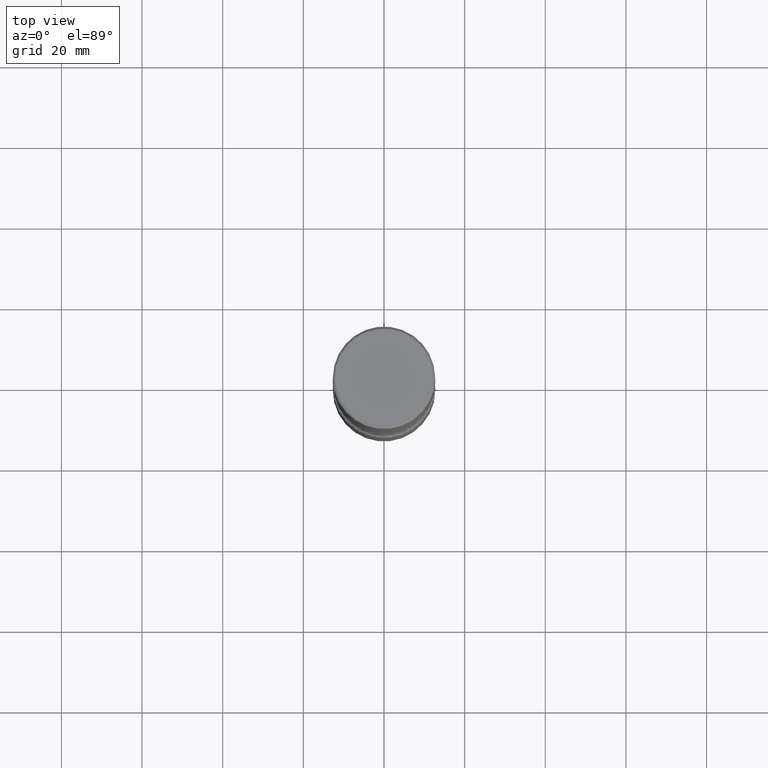
[diagram: clean part render]
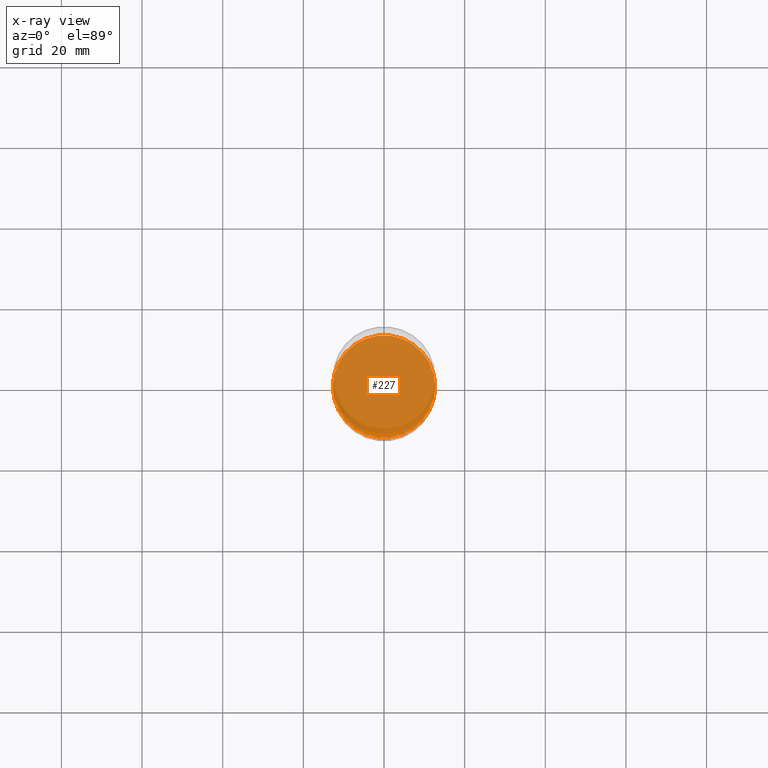
[diagram: x-ray — body ghosted, one internal face saturated and labeled with its STEP entity id]
A machine part, top view, then the same camera in x-ray: the body is ghosted and one INTERNAL B-rep face — a face not visible from any outside direction — is saturated and labeled: STEP entity #227.
In plain terms, the highlighted planar face has unit normal (0, -0, -1).
Its self-contained STEP definition (entity closure, byte-faithful):
#10 = EDGE_CURVE ( 'NONE', #410, #215, #295, .T. ) ;
#83 = PLANE ( 'NONE',  #108 ) ;
#108 = AXIS2_PLACEMENT_3D ( 'NONE', #473, #133, #126 ) ;
#126 = DIRECTION ( 'NONE',  ( -1.000000000000000000, 6.982962677686265922E-15, -4.876176775795935793E-29 ) ) ;
#133 = DIRECTION ( 'NONE',  ( 2.438088387897960049E-29, -3.491481338843145188E-15, -1.000000000000000000 ) ) ;
#179 = DIRECTION ( 'NONE',  ( 1.000000000000000000, -6.982962677686263555E-15, 0.000000000000000000 ) ) ;
#215 = VERTEX_POINT ( 'NONE', #556 ) ;
#224 = DIRECTION ( 'NONE',  ( -2.445468806185136597E-29, 3.491481338843145583E-15, 1.000000000000000000 ) ) ;
#227 = ADVANCED_FACE ( 'NONE', ( #395 ), #83, .F. ) ;
#257 = ORIENTED_EDGE ( 'NONE', *, *, #10, .T. ) ;
#259 = EDGE_LOOP ( 'NONE', ( #474, #257 ) ) ;
#273 = CARTESIAN_POINT ( 'NONE',  ( -0.5000000000000002220, -1.737871694756415201E-14, -4.999999999999999112 ) ) ;
#274 = DIRECTION ( 'NONE',  ( -2.445468806185136597E-29, 3.491481338843145583E-15, 1.000000000000000000 ) ) ;
#279 = DIRECTION ( 'NONE',  ( 1.000000000000000000, -6.982962677686263555E-15, 0.000000000000000000 ) ) ;
#295 = CIRCLE ( 'NONE', #548, 0.5000000000000002220 ) ;
#309 = CIRCLE ( 'NONE', #346, 0.5000000000000002220 ) ;
#346 = AXIS2_PLACEMENT_3D ( 'NONE', #377, #274, #279 ) ;
#377 = CARTESIAN_POINT ( 'NONE',  ( 1.222734403092568074E-28, -1.745740669421572673E-14, -4.999999999999999112 ) ) ;
#395 = FACE_OUTER_BOUND ( 'NONE', #259, .T. ) ;
#409 = EDGE_CURVE ( 'NONE', #215, #410, #309, .T. ) ;
#410 = VERTEX_POINT ( 'NONE', #273 ) ;
#453 = CARTESIAN_POINT ( 'NONE',  ( 1.222734403092568074E-28, -1.745740669421572673E-14, -4.999999999999999112 ) ) ;
#473 = CARTESIAN_POINT ( 'NONE',  ( 1.222734403092568074E-28, -1.745740669421572673E-14, -4.999999999999999112 ) ) ;
#474 = ORIENTED_EDGE ( 'NONE', *, *, #409, .T. ) ;
#548 = AXIS2_PLACEMENT_3D ( 'NONE', #453, #224, #179 ) ;
#556 = CARTESIAN_POINT ( 'NONE',  ( 0.5000000000000002220, -2.094888803305886009E-14, -4.999999999999999112 ) ) ;